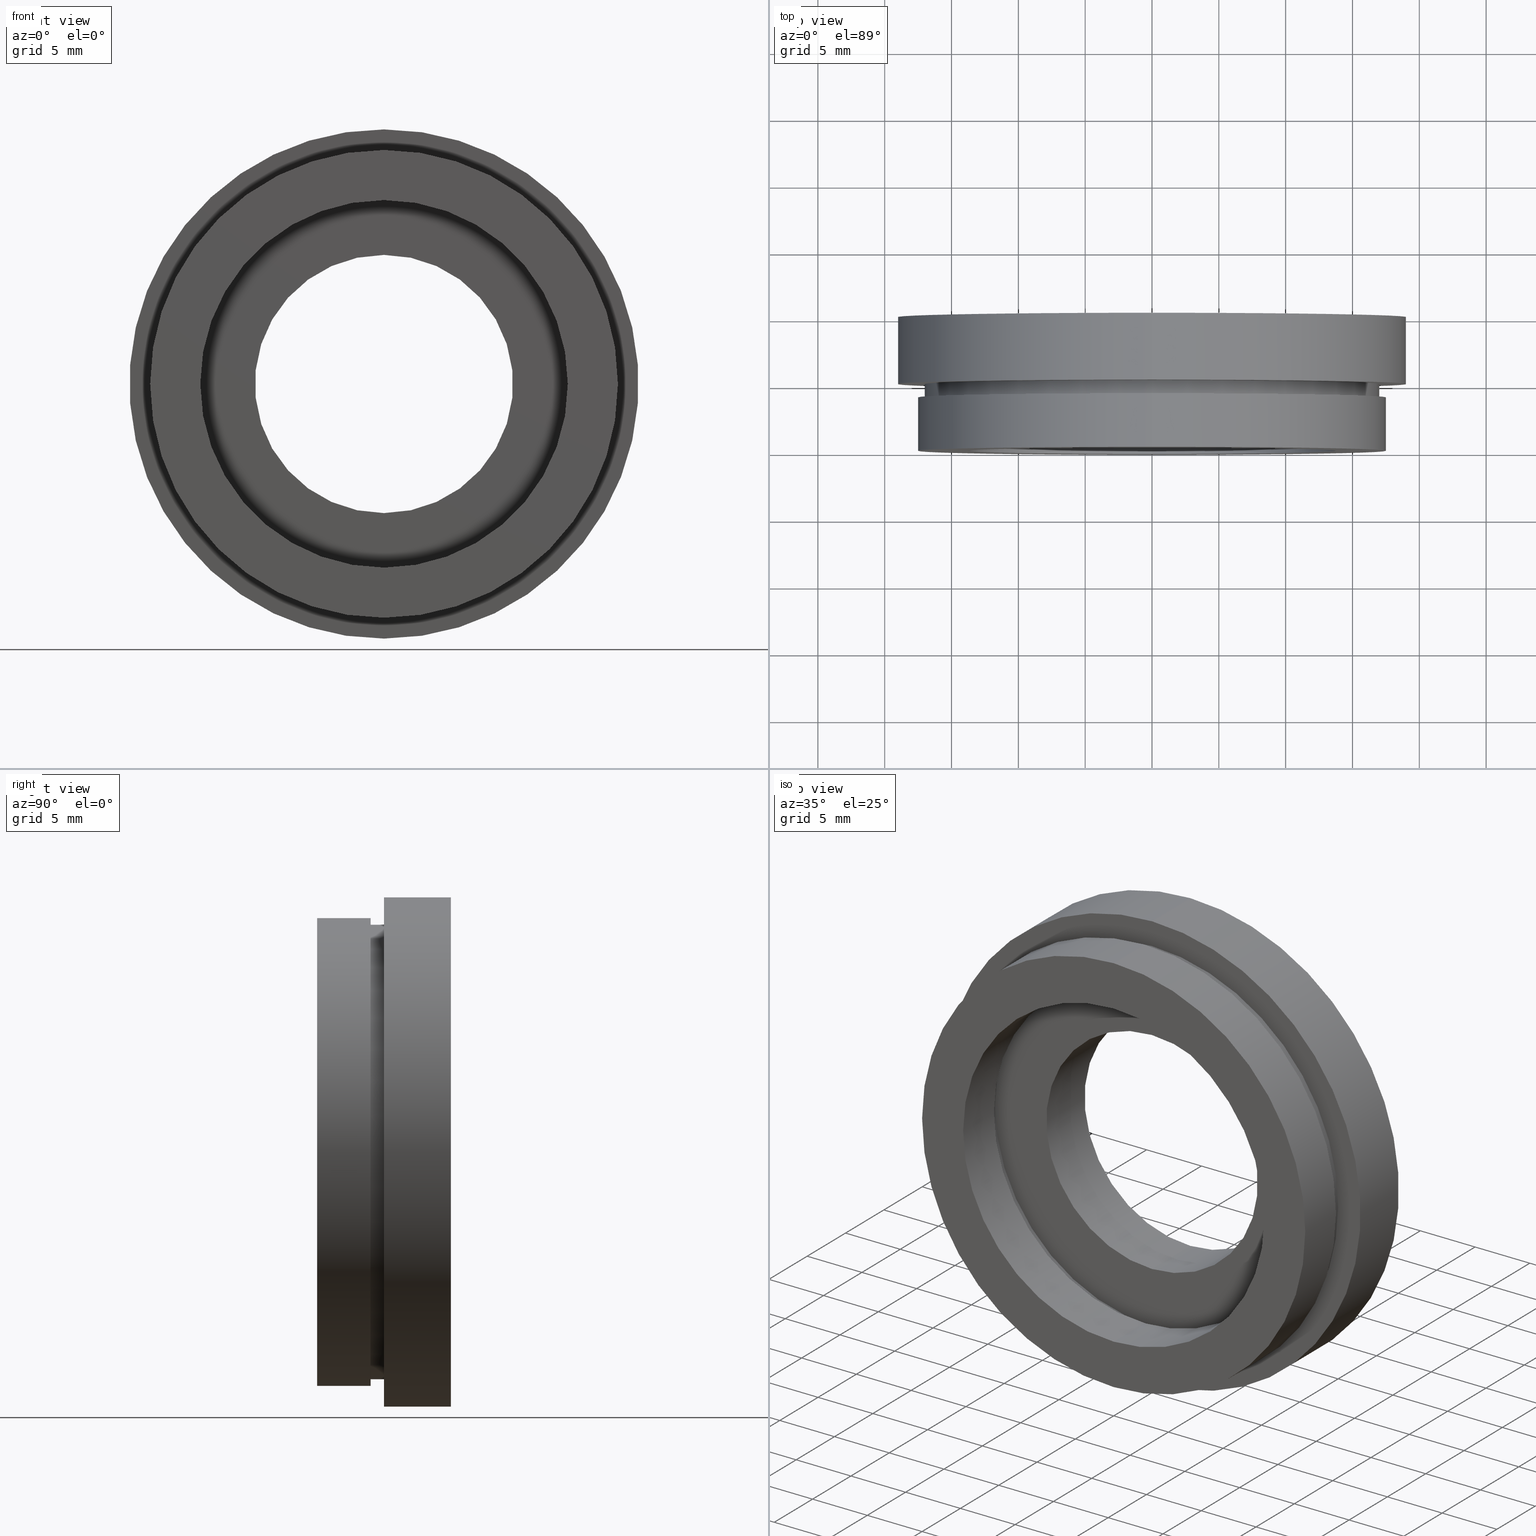
[diagram: canonical four-view strip — front | top / right | iso, engineering-drawing reading convention]
A machine part, canonical four-view strip (front | top / right | iso — engineering-drawing reading convention). The complete STEP part file that produces these views, byte-faithful:
ISO-10303-21;
HEADER;
FILE_DESCRIPTION (( 'STEP AP214' ),
    '1' );
FILE_NAME ('504126.STEP',
    '2019-10-10T07:33:19',
    ( 'user' ),
    ( '΢���й�' ),
    'SwSTEP 2.0',
    'SolidWorks 2016',
    '' );
FILE_SCHEMA (( 'AUTOMOTIVE_DESIGN' ));
ENDSEC;

DATA;
#1 = PRESENTATION_STYLE_ASSIGNMENT (( #591 ) ) ;
#2 = EDGE_CURVE ( 'NONE', #420, #201, #245, .T. ) ;
#3 = SURFACE_SIDE_STYLE ('',( #462 ) ) ;
#4 = UNCERTAINTY_MEASURE_WITH_UNIT (LENGTH_MEASURE( 1.000000000000000100E-005 ), #336, 'distance_accuracy_value', 'NONE');
#5 = DIRECTION ( 'NONE',  ( -0.0000000000000000000, 1.000000000000000000, -0.0000000000000000000 ) ) ;
#6 = CIRCLE ( 'NONE', #101, 14.35000000000000100 ) ;
#7 = EDGE_LOOP ( 'NONE', ( #266, #349, #111, #581 ) ) ;
#8 = AXIS2_PLACEMENT_3D ( 'NONE', #374, #583, #230 ) ;
#9 = ORIENTED_EDGE ( 'NONE', *, *, #530, .F. ) ;
#10 = AXIS2_PLACEMENT_3D ( 'NONE', #317, #52, #461 ) ;
#11 = DIRECTION ( 'NONE',  ( 0.0000000000000000000, 0.0000000000000000000, 1.000000000000000000 ) ) ;
#12 = DIRECTION ( 'NONE',  ( -0.0000000000000000000, 1.000000000000000000, -0.0000000000000000000 ) ) ;
#13 = VERTEX_POINT ( 'NONE', #37 ) ;
#14 = LINE ( 'NONE', #514, #220 ) ;
#15 = CYLINDRICAL_SURFACE ( 'NONE', #66, 13.75000000000000200 ) ;
#16 = ADVANCED_FACE ( 'NONE', ( #28 ), #397, .T. ) ;
#17 = CARTESIAN_POINT ( 'NONE',  ( 1.183008807976343300E-015, 9.999999999999998200, -9.660000000000000100 ) ) ;
#18 = ORIENTED_EDGE ( 'NONE', *, *, #372, .F. ) ;
#19 = APPLICATION_PROTOCOL_DEFINITION ( 'draft international standard', 'automotive_design', 1998, #106 ) ;
#20 = CARTESIAN_POINT ( 'NONE',  ( 0.0000000000000000000, 13.74468085106383300, 0.0000000000000000000 ) ) ;
#21 = EDGE_CURVE ( 'NONE', #217, #201, #481, .T. ) ;
#22 = CIRCLE ( 'NONE', #387, 9.660000000000000100 ) ;
#23 = UNCERTAINTY_MEASURE_WITH_UNIT (LENGTH_MEASURE( 1.000000000000000100E-005 ), #413, 'distance_accuracy_value', 'NONE');
#24 = EDGE_LOOP ( 'NONE', ( #331, #442, #428, #133 ) ) ;
#25 = AXIS2_PLACEMENT_3D ( 'NONE', #285, #389, #480 ) ;
#26 = CARTESIAN_POINT ( 'NONE',  ( 0.0000000000000000000, 4.000000000000000000, 0.0000000000000000000 ) ) ;
#27 = STYLED_ITEM ( 'NONE', ( #304 ), #308 ) ;
#28 = FACE_OUTER_BOUND ( 'NONE', #241, .T. ) ;
#29 = EDGE_CURVE ( 'NONE', #175, #437, #335, .T. ) ;
#30 = FILL_AREA_STYLE_COLOUR ( '', #153 ) ;
#31 = UNCERTAINTY_MEASURE_WITH_UNIT (LENGTH_MEASURE( 1.000000000000000100E-005 ), #409, 'distance_accuracy_value', 'NONE');
#32 = EDGE_LOOP ( 'NONE', ( #114, #267 ) ) ;
#33 = DIRECTION ( 'NONE',  ( -0.0000000000000000000, 1.000000000000000000, -0.0000000000000000000 ) ) ;
#34 =( LENGTH_UNIT ( ) NAMED_UNIT ( * ) SI_UNIT ( .MILLI., .METRE. ) );
#35 = EDGE_CURVE ( 'NONE', #97, #594, #226, .T. ) ;
#36 = CARTESIAN_POINT ( 'NONE',  ( 0.0000000000000000000, 0.0000000000000000000, 0.0000000000000000000 ) ) ;
#37 = CARTESIAN_POINT ( 'NONE',  ( 0.0000000000000000000, 4.000000000000000000, 14.35000000000000100 ) ) ;
#38 =( GEOMETRIC_REPRESENTATION_CONTEXT ( 3 ) GLOBAL_UNCERTAINTY_ASSIGNED_CONTEXT ( ( #23 ) ) GLOBAL_UNIT_ASSIGNED_CONTEXT ( ( #413, #300, #558 ) ) REPRESENTATION_CONTEXT ( 'NONE', 'WORKASPACE' ) );
#39 = ADVANCED_FACE ( 'NONE', ( #170 ), #121, .T. ) ;
#40 = ORIENTED_EDGE ( 'NONE', *, *, #47, .F. ) ;
#41 = SHAPE_DEFINITION_REPRESENTATION ( #307, #151 ) ;
#42 = PLANE ( 'NONE',  #25 ) ;
#43 = CARTESIAN_POINT ( 'NONE',  ( 0.0000000000000000000, 5.000000000000000900, 0.0000000000000000000 ) ) ;
#44 = DIRECTION ( 'NONE',  ( -0.0000000000000000000, 1.000000000000000000, -0.0000000000000000000 ) ) ;
#45 = ORIENTED_EDGE ( 'NONE', *, *, #162, .F. ) ;
#46 = MECHANICAL_DESIGN_GEOMETRIC_PRESENTATION_REPRESENTATION (  '', ( #77 ), #143 ) ;
#47 = EDGE_CURVE ( 'NONE', #221, #13, #6, .T. ) ;
#48 = PRODUCT_CONTEXT ( 'NONE', #388, 'mechanical' ) ;
#49 = PRESENTATION_STYLE_ASSIGNMENT (( #129 ) ) ;
#50 = CARTESIAN_POINT ( 'NONE',  ( 1.183008807976343300E-015, 13.74468085106383300, -9.660000000000000100 ) ) ;
#51 = ORIENTED_EDGE ( 'NONE', *, *, #562, .F. ) ;
#52 = DIRECTION ( 'NONE',  ( -0.0000000000000000000, 1.000000000000000000, -0.0000000000000000000 ) ) ;
#53 = SURFACE_SIDE_STYLE ('',( #446 ) ) ;
#54 = CIRCLE ( 'NONE', #519, 9.660000000000000100 ) ;
#55 = VECTOR ( 'NONE', #86, 1000.000000000000000 ) ;
#56 = FACE_OUTER_BOUND ( 'NONE', #466, .T. ) ;
#57 = AXIS2_PLACEMENT_3D ( 'NONE', #212, #292, #474 ) ;
#58 = EDGE_CURVE ( 'NONE', #437, #175, #611, .T. ) ;
#59 = ORIENTED_EDGE ( 'NONE', *, *, #421, .T. ) ;
#60 = CARTESIAN_POINT ( 'NONE',  ( 0.0000000000000000000, 13.74468085106383300, 13.75000000000000200 ) ) ;
#61 = AXIS2_PLACEMENT_3D ( 'NONE', #590, #274, #193 ) ;
#62 = FACE_OUTER_BOUND ( 'NONE', #451, .T. ) ;
#63 = FACE_OUTER_BOUND ( 'NONE', #458, .T. ) ;
#64 = CARTESIAN_POINT ( 'NONE',  ( 1.183008807976343300E-015, 5.000000000000000900, -9.660000000000000100 ) ) ;
#65 = ORIENTED_EDGE ( 'NONE', *, *, #72, .T. ) ;
#66 = AXIS2_PLACEMENT_3D ( 'NONE', #570, #483, #272 ) ;
#67 = CYLINDRICAL_SURFACE ( 'NONE', #447, 17.00000000000000000 ) ;
#68 = AXIS2_PLACEMENT_3D ( 'NONE', #93, #262, #400 ) ;
#69 = ORIENTED_EDGE ( 'NONE', *, *, #443, .T. ) ;
#70 = CARTESIAN_POINT ( 'NONE',  ( 0.0000000000000000000, 13.74468085106383300, 19.05000000000000400 ) ) ;
#71 = PRESENTATION_LAYER_ASSIGNMENT (  '', '', ( #607 ) ) ;
#72 = EDGE_CURVE ( 'NONE', #97, #117, #603, .T. ) ;
#73 = ORIENTED_EDGE ( 'NONE', *, *, #35, .F. ) ;
#74 = AXIS2_PLACEMENT_3D ( 'NONE', #185, #328, #91 ) ;
#75 =( LENGTH_UNIT ( ) NAMED_UNIT ( * ) SI_UNIT ( .MILLI., .METRE. ) );
#76 =( NAMED_UNIT ( * ) SI_UNIT ( $, .STERADIAN. ) SOLID_ANGLE_UNIT ( ) );
#77 = STYLED_ITEM ( 'NONE', ( #284 ), #149 ) ;
#78 = CARTESIAN_POINT ( 'NONE',  ( 1.683889348827611000E-015, 13.74468085106383300, -13.75000000000000200 ) ) ;
#79 = EDGE_CURVE ( 'NONE', #363, #215, #108, .T. ) ;
#80 = ORIENTED_EDGE ( 'NONE', *, *, #294, .T. ) ;
#81 = ORIENTED_EDGE ( 'NONE', *, *, #206, .T. ) ;
#82 = ORIENTED_EDGE ( 'NONE', *, *, #47, .T. ) ;
#83 =( NAMED_UNIT ( * ) PLANE_ANGLE_UNIT ( ) SI_UNIT ( $, .RADIAN. ) );
#84 = DIRECTION ( 'NONE',  ( -0.0000000000000000000, 1.000000000000000000, -0.0000000000000000000 ) ) ;
#85 = DIRECTION ( 'NONE',  ( 1.000000000000000000, 0.0000000000000000000, 0.0000000000000000000 ) ) ;
#86 = DIRECTION ( 'NONE',  ( -0.0000000000000000000, 1.000000000000000000, -0.0000000000000000000 ) ) ;
#87 =( LENGTH_UNIT ( ) NAMED_UNIT ( * ) SI_UNIT ( .MILLI., .METRE. ) );
#88 = VERTEX_POINT ( 'NONE', #235 ) ;
#89 = ADVANCED_FACE ( 'NONE', ( #585 ), #432, .T. ) ;
#90 = ORIENTED_EDGE ( 'NONE', *, *, #358, .T. ) ;
#91 = DIRECTION ( 'NONE',  ( 0.0000000000000000000, 0.0000000000000000000, 1.000000000000000000 ) ) ;
#92 = EDGE_CURVE ( 'NONE', #88, #217, #517, .T. ) ;
#93 = CARTESIAN_POINT ( 'NONE',  ( 0.0000000000000000000, 4.000000000000000000, 0.0000000000000000000 ) ) ;
#94 = CARTESIAN_POINT ( 'NONE',  ( 0.0000000000000000000, 5.000000000000000900, 0.0000000000000000000 ) ) ;
#95 = CARTESIAN_POINT ( 'NONE',  ( 2.143131898507868200E-015, 4.000000000000000000, -17.50000000000000000 ) ) ;
#96 = DIRECTION ( 'NONE',  ( 0.0000000000000000000, 0.0000000000000000000, 1.000000000000000000 ) ) ;
#97 = VERTEX_POINT ( 'NONE', #136 ) ;
#98 = VERTEX_POINT ( 'NONE', #430 ) ;
#99 = FILL_AREA_STYLE ('',( #623 ) ) ;
#100 = AXIS2_PLACEMENT_3D ( 'NONE', #565, #340, #277 ) ;
#101 = AXIS2_PLACEMENT_3D ( 'NONE', #26, #547, #544 ) ;
#102 = CARTESIAN_POINT ( 'NONE',  ( 0.0000000000000000000, 13.74468085106383300, 0.0000000000000000000 ) ) ;
#103 = APPLICATION_PROTOCOL_DEFINITION ( 'draft international standard', 'automotive_design', 1998, #388 ) ;
#104 = EDGE_CURVE ( 'NONE', #215, #574, #571, .T. ) ;
#105 = SURFACE_SIDE_STYLE ('',( #486 ) ) ;
#106 = APPLICATION_CONTEXT ( 'automotive_design' ) ;
#107 = ORIENTED_EDGE ( 'NONE', *, *, #72, .F. ) ;
#108 = CIRCLE ( 'NONE', #407, 9.660000000000000100 ) ;
#109 = AXIS2_PLACEMENT_3D ( 'NONE', #20, #392, #191 ) ;
#110 = EDGE_CURVE ( 'NONE', #117, #467, #270, .T. ) ;
#111 = ORIENTED_EDGE ( 'NONE', *, *, #135, .T. ) ;
#112 = ORIENTED_EDGE ( 'NONE', *, *, #597, .T. ) ;
#113 = SURFACE_SIDE_STYLE ('',( #580 ) ) ;
#114 = ORIENTED_EDGE ( 'NONE', *, *, #453, .F. ) ;
#115 = DIRECTION ( 'NONE',  ( -0.0000000000000000000, 1.000000000000000000, -0.0000000000000000000 ) ) ;
#116 = CYLINDRICAL_SURFACE ( 'NONE', #478, 17.50000000000000000 ) ;
#117 = VERTEX_POINT ( 'NONE', #138 ) ;
#118 = CARTESIAN_POINT ( 'NONE',  ( 0.0000000000000000000, 13.74468085106383300, 0.0000000000000000000 ) ) ;
#119 = EDGE_CURVE ( 'NONE', #175, #365, #510, .T. ) ;
#120 = FACE_OUTER_BOUND ( 'NONE', #24, .T. ) ;
#121 = CYLINDRICAL_SURFACE ( 'NONE', #348, 19.05000000000000400 ) ;
#122 = CIRCLE ( 'NONE', #269, 13.75000000000000200 ) ;
#123 = ORIENTED_EDGE ( 'NONE', *, *, #622, .T. ) ;
#124 = FACE_OUTER_BOUND ( 'NONE', #326, .T. ) ;
#125 = DIRECTION ( 'NONE',  ( 0.0000000000000000000, -0.0000000000000000000, -1.000000000000000000 ) ) ;
#126 = MECHANICAL_DESIGN_GEOMETRIC_PRESENTATION_REPRESENTATION (  '', ( #27 ), #161 ) ;
#127 = AXIS2_PLACEMENT_3D ( 'NONE', #43, #297, #568 ) ;
#128 = DIRECTION ( 'NONE',  ( -0.0000000000000000000, 1.000000000000000000, -0.0000000000000000000 ) ) ;
#129 = SURFACE_STYLE_USAGE ( .BOTH. , #190 ) ;
#130 = ORIENTED_EDGE ( 'NONE', *, *, #119, .T. ) ;
#131 =( NAMED_UNIT ( * ) SI_UNIT ( $, .STERADIAN. ) SOLID_ANGLE_UNIT ( ) );
#132 = DIRECTION ( 'NONE',  ( -0.0000000000000000000, 1.000000000000000000, -0.0000000000000000000 ) ) ;
#133 = ORIENTED_EDGE ( 'NONE', *, *, #381, .F. ) ;
#134 = ORIENTED_EDGE ( 'NONE', *, *, #58, .T. ) ;
#135 = EDGE_CURVE ( 'NONE', #288, #574, #54, .T. ) ;
#136 = CARTESIAN_POINT ( 'NONE',  ( 0.0000000000000000000, 5.000000000000000900, 19.05000000000000400 ) ) ;
#137 =( NAMED_UNIT ( * ) PLANE_ANGLE_UNIT ( ) SI_UNIT ( $, .RADIAN. ) );
#138 = CARTESIAN_POINT ( 'NONE',  ( 2.332952152375708400E-015, 5.000000000000000900, -19.05000000000000400 ) ) ;
#139 = ADVANCED_FACE ( 'NONE', ( #521 ), #604, .F. ) ;
#140 = CIRCLE ( 'NONE', #8, 19.05000000000000400 ) ;
#141 = UNCERTAINTY_MEASURE_WITH_UNIT (LENGTH_MEASURE( 1.000000000000000100E-005 ), #87, 'distance_accuracy_value', 'NONE');
#142 = DIRECTION ( 'NONE',  ( 0.0000000000000000000, 0.0000000000000000000, 1.000000000000000000 ) ) ;
#143 =( GEOMETRIC_REPRESENTATION_CONTEXT ( 3 ) GLOBAL_UNCERTAINTY_ASSIGNED_CONTEXT ( ( #4 ) ) GLOBAL_UNIT_ASSIGNED_CONTEXT ( ( #336, #156, #76 ) ) REPRESENTATION_CONTEXT ( 'NONE', 'WORKASPACE' ) );
#144 = CLOSED_SHELL ( 'NONE', ( #503, #535, #39, #149, #299, #302, #139, #254, #244, #366, #308, #575, #148, #615, #16, #620, #89, #564 ) ) ;
#145 = ORIENTED_EDGE ( 'NONE', *, *, #224, .F. ) ;
#146 = EDGE_CURVE ( 'NONE', #594, #467, #140, .T. ) ;
#147 =( NAMED_UNIT ( * ) SI_UNIT ( $, .STERADIAN. ) SOLID_ANGLE_UNIT ( ) );
#148 = ADVANCED_FACE ( 'NONE', ( #120 ), #370, .T. ) ;
#149 = ADVANCED_FACE ( 'NONE', ( #476 ), #391, .F. ) ;
#150 = CIRCLE ( 'NONE', #378, 19.05000000000000400 ) ;
#151 = ADVANCED_BREP_SHAPE_REPRESENTATION ( '504126', ( #541, #427 ), #38 ) ;
#152 = ORIENTED_EDGE ( 'NONE', *, *, #29, .T. ) ;
#153 = COLOUR_RGB ( '',1.000000000000000000, 1.000000000000000000, 1.000000000000000000 ) ;
#154 =( GEOMETRIC_REPRESENTATION_CONTEXT ( 3 ) GLOBAL_UNCERTAINTY_ASSIGNED_CONTEXT ( ( #439 ) ) GLOBAL_UNIT_ASSIGNED_CONTEXT ( ( #440, #218, #455 ) ) REPRESENTATION_CONTEXT ( 'NONE', 'WORKASPACE' ) );
#155 = COLOUR_RGB ( '',1.000000000000000000, 1.000000000000000000, 1.000000000000000000 ) ;
#156 =( NAMED_UNIT ( * ) PLANE_ANGLE_UNIT ( ) SI_UNIT ( $, .RADIAN. ) );
#157 = ORIENTED_EDGE ( 'NONE', *, *, #2, .F. ) ;
#158 = DIRECTION ( 'NONE',  ( -0.0000000000000000000, 1.000000000000000000, 0.0000000000000000000 ) ) ;
#159 =( NAMED_UNIT ( * ) PLANE_ANGLE_UNIT ( ) SI_UNIT ( $, .RADIAN. ) );
#160 = COLOUR_RGB ( '',1.000000000000000000, 1.000000000000000000, 1.000000000000000000 ) ;
#161 =( GEOMETRIC_REPRESENTATION_CONTEXT ( 3 ) GLOBAL_UNCERTAINTY_ASSIGNED_CONTEXT ( ( #31 ) ) GLOBAL_UNIT_ASSIGNED_CONTEXT ( ( #409, #613, #147 ) ) REPRESENTATION_CONTEXT ( 'NONE', 'WORKASPACE' ) );
#162 = EDGE_CURVE ( 'NONE', #248, #316, #347, .T. ) ;
#163 = FACE_OUTER_BOUND ( 'NONE', #435, .T. ) ;
#164 = DIRECTION ( 'NONE',  ( -0.0000000000000000000, 1.000000000000000000, -0.0000000000000000000 ) ) ;
#165 = ORIENTED_EDGE ( 'NONE', *, *, #465, .T. ) ;
#166 = DIRECTION ( 'NONE',  ( -0.0000000000000000000, 1.000000000000000000, -0.0000000000000000000 ) ) ;
#167 = CARTESIAN_POINT ( 'NONE',  ( 0.0000000000000000000, 4.999999999999999100, 14.35000000000000000 ) ) ;
#168 = EDGE_CURVE ( 'NONE', #201, #420, #426, .T. ) ;
#169 = DIRECTION ( 'NONE',  ( -0.0000000000000000000, 1.000000000000000000, -0.0000000000000000000 ) ) ;
#170 = FACE_OUTER_BOUND ( 'NONE', #540, .T. ) ;
#171 = AXIS2_PLACEMENT_3D ( 'NONE', #94, #608, #403 ) ;
#172 = ORIENTED_EDGE ( 'NONE', *, *, #119, .F. ) ;
#173 = ORIENTED_EDGE ( 'NONE', *, *, #146, .F. ) ;
#174 = DIRECTION ( 'NONE',  ( -0.0000000000000000000, 1.000000000000000000, -0.0000000000000000000 ) ) ;
#175 = VERTEX_POINT ( 'NONE', #394 ) ;
#176 = AXIS2_PLACEMENT_3D ( 'NONE', #405, #550, #256 ) ;
#177 = CARTESIAN_POINT ( 'NONE',  ( 14.35000000000000000, 4.999999999999999100, 0.0000000000000000000 ) ) ;
#178 = FACE_BOUND ( 'NONE', #337, .T. ) ;
#179 = PRESENTATION_STYLE_ASSIGNMENT (( #454 ) ) ;
#180 = FACE_OUTER_BOUND ( 'NONE', #600, .T. ) ;
#181 = DIRECTION ( 'NONE',  ( 0.0000000000000000000, 0.0000000000000000000, 1.000000000000000000 ) ) ;
#182 = DIRECTION ( 'NONE',  ( 0.0000000000000000000, 0.0000000000000000000, 1.000000000000000000 ) ) ;
#183 = DIRECTION ( 'NONE',  ( 0.0000000000000000000, 0.0000000000000000000, 1.000000000000000000 ) ) ;
#184 = CARTESIAN_POINT ( 'NONE',  ( 0.0000000000000000000, 5.000000000000000900, 0.0000000000000000000 ) ) ;
#185 = CARTESIAN_POINT ( 'NONE',  ( 0.0000000000000000000, 5.000000000000000900, 0.0000000000000000000 ) ) ;
#186 = UNCERTAINTY_MEASURE_WITH_UNIT (LENGTH_MEASURE( 1.000000000000000100E-005 ), #293, 'distance_accuracy_value', 'NONE');
#187 = ORIENTED_EDGE ( 'NONE', *, *, #203, .F. ) ;
#188 = AXIS2_PLACEMENT_3D ( 'NONE', #287, #537, #493 ) ;
#189 = ORIENTED_EDGE ( 'NONE', *, *, #282, .T. ) ;
#190 = SURFACE_SIDE_STYLE ('',( #342 ) ) ;
#191 = DIRECTION ( 'NONE',  ( 0.0000000000000000000, 0.0000000000000000000, 1.000000000000000000 ) ) ;
#192 = DIRECTION ( 'NONE',  ( 0.0000000000000000000, 0.0000000000000000000, 1.000000000000000000 ) ) ;
#193 = DIRECTION ( 'NONE',  ( 0.0000000000000000000, 0.0000000000000000000, 1.000000000000000000 ) ) ;
#194 = CIRCLE ( 'NONE', #468, 17.00000000000000000 ) ;
#195 = DIRECTION ( 'NONE',  ( -0.0000000000000000000, 1.000000000000000000, -0.0000000000000000000 ) ) ;
#196 = SURFACE_STYLE_USAGE ( .BOTH. , #3 ) ;
#197 = ORIENTED_EDGE ( 'NONE', *, *, #168, .F. ) ;
#198 = LINE ( 'NONE', #361, #385 ) ;
#199 = CARTESIAN_POINT ( 'NONE',  ( 0.0000000000000000000, 5.000000000000000900, 17.00000000000000000 ) ) ;
#200 = ORIENTED_EDGE ( 'NONE', *, *, #294, .F. ) ;
#201 = VERTEX_POINT ( 'NONE', #552 ) ;
#202 = ORIENTED_EDGE ( 'NONE', *, *, #358, .F. ) ;
#203 = EDGE_CURVE ( 'NONE', #13, #221, #484, .T. ) ;
#204 = MECHANICAL_DESIGN_GEOMETRIC_PRESENTATION_REPRESENTATION (  '', ( #502 ), #401 ) ;
#205 = LINE ( 'NONE', #78, #448 ) ;
#206 = EDGE_CURVE ( 'NONE', #88, #420, #14, .T. ) ;
#207 = CYLINDRICAL_SURFACE ( 'NONE', #406, 14.35000000000000100 ) ;
#208 = EDGE_LOOP ( 'NONE', ( #298, #452, #616, #157 ) ) ;
#209 = ORIENTED_EDGE ( 'NONE', *, *, #29, .F. ) ;
#210 = AXIS2_PLACEMENT_3D ( 'NONE', #382, #554, #362 ) ;
#211 = CARTESIAN_POINT ( 'NONE',  ( 0.0000000000000000000, 0.0000000000000000000, 0.0000000000000000000 ) ) ;
#212 = CARTESIAN_POINT ( 'NONE',  ( 0.0000000000000000000, 4.000000000000000000, 0.0000000000000000000 ) ) ;
#213 = AXIS2_PLACEMENT_3D ( 'NONE', #445, #507, #399 ) ;
#214 = COLOUR_RGB ( '',1.000000000000000000, 1.000000000000000000, 1.000000000000000000 ) ;
#215 = VERTEX_POINT ( 'NONE', #592 ) ;
#216 = DIRECTION ( 'NONE',  ( 0.0000000000000000000, -1.000000000000000000, 0.0000000000000000000 ) ) ;
#217 = VERTEX_POINT ( 'NONE', #509 ) ;
#218 =( NAMED_UNIT ( * ) PLANE_ANGLE_UNIT ( ) SI_UNIT ( $, .RADIAN. ) );
#219 = DIRECTION ( 'NONE',  ( -0.0000000000000000000, 1.000000000000000000, -0.0000000000000000000 ) ) ;
#220 = VECTOR ( 'NONE', #598, 1000.000000000000000 ) ;
#221 = VERTEX_POINT ( 'NONE', #423 ) ;
#222 = CARTESIAN_POINT ( 'NONE',  ( 0.0000000000000000000, 13.74468085106383300, 14.35000000000000100 ) ) ;
#223 = DIRECTION ( 'NONE',  ( -0.0000000000000000000, 1.000000000000000000, -0.0000000000000000000 ) ) ;
#224 = EDGE_CURVE ( 'NONE', #253, #283, #353, .T. ) ;
#225 = CARTESIAN_POINT ( 'NONE',  ( 1.757368156776451600E-015, 4.999999999999999100, -14.35000000000000000 ) ) ;
#226 = LINE ( 'NONE', #70, #55 ) ;
#227 = FACE_OUTER_BOUND ( 'NONE', #332, .T. ) ;
#228 = FILL_AREA_STYLE_COLOUR ( '', #398 ) ;
#229 = LINE ( 'NONE', #60, #321 ) ;
#230 = DIRECTION ( 'NONE',  ( 0.0000000000000000000, 0.0000000000000000000, 1.000000000000000000 ) ) ;
#231 = ORIENTED_EDGE ( 'NONE', *, *, #542, .T. ) ;
#232 = CARTESIAN_POINT ( 'NONE',  ( 0.0000000000000000000, 4.000000000000000000, 0.0000000000000000000 ) ) ;
#233 = AXIS2_PLACEMENT_3D ( 'NONE', #586, #330, #96 ) ;
#234 = PLANE ( 'NONE',  #243 ) ;
#235 = CARTESIAN_POINT ( 'NONE',  ( 2.143131898507868200E-015, 0.0000000000000000000, -17.50000000000000000 ) ) ;
#236 = CIRCLE ( 'NONE', #614, 13.75000000000000000 ) ;
#237 = FACE_OUTER_BOUND ( 'NONE', #457, .T. ) ;
#238 = FILL_AREA_STYLE_COLOUR ( '', #431 ) ;
#239 = CIRCLE ( 'NONE', #309, 14.35000000000000000 ) ;
#240 = DIRECTION ( 'NONE',  ( 0.0000000000000000000, 0.0000000000000000000, 1.000000000000000000 ) ) ;
#241 = EDGE_LOOP ( 'NONE', ( #578, #134, #130, #313 ) ) ;
#242 = CARTESIAN_POINT ( 'NONE',  ( 0.0000000000000000000, 13.74468085106383300, 17.00000000000000000 ) ) ;
#243 = AXIS2_PLACEMENT_3D ( 'NONE', #579, #216, #441 ) ;
#244 = ADVANCED_FACE ( 'NONE', ( #237 ), #207, .F. ) ;
#245 = CIRCLE ( 'NONE', #188, 17.50000000000000000 ) ;
#246 = FACE_BOUND ( 'NONE', #32, .T. ) ;
#247 = DIRECTION ( 'NONE',  ( 0.0000000000000000000, 0.0000000000000000000, 1.000000000000000000 ) ) ;
#248 = VERTEX_POINT ( 'NONE', #225 ) ;
#249 = AXIS2_PLACEMENT_3D ( 'NONE', #271, #115, #371 ) ;
#250 = PLANE ( 'NONE',  #61 ) ;
#251 = ORIENTED_EDGE ( 'NONE', *, *, #479, .F. ) ;
#252 = CARTESIAN_POINT ( 'NONE',  ( 0.0000000000000000000, 4.000000000000000000, 0.0000000000000000000 ) ) ;
#253 = VERTEX_POINT ( 'NONE', #596 ) ;
#254 = ADVANCED_FACE ( 'NONE', ( #178, #124 ), #546, .F. ) ;
#255 = CARTESIAN_POINT ( 'NONE',  ( 0.0000000000000000000, 4.999999999999999100, 0.0000000000000000000 ) ) ;
#256 = DIRECTION ( 'NONE',  ( 0.0000000000000000000, 0.0000000000000000000, 1.000000000000000000 ) ) ;
#257 = CARTESIAN_POINT ( 'NONE',  ( 0.0000000000000000000, 5.000000000000000900, 0.0000000000000000000 ) ) ;
#258 = LINE ( 'NONE', #50, #556 ) ;
#259 = ORIENTED_EDGE ( 'NONE', *, *, #146, .T. ) ;
#260 = ORIENTED_EDGE ( 'NONE', *, *, #530, .T. ) ;
#261 = CARTESIAN_POINT ( 'NONE',  ( 17.50000000000000000, -4.439344646909156000E-016, 0.0000000000000000000 ) ) ;
#262 = DIRECTION ( 'NONE',  ( -0.0000000000000000000, 1.000000000000000000, -0.0000000000000000000 ) ) ;
#263 = PRESENTATION_STYLE_ASSIGNMENT (( #456 ) ) ;
#264 = SURFACE_SIDE_STYLE ('',( #338 ) ) ;
#265 = VECTOR ( 'NONE', #582, 1000.000000000000000 ) ;
#266 = ORIENTED_EDGE ( 'NONE', *, *, #79, .F. ) ;
#267 = ORIENTED_EDGE ( 'NONE', *, *, #135, .F. ) ;
#268 =( NAMED_UNIT ( * ) PLANE_ANGLE_UNIT ( ) SI_UNIT ( $, .RADIAN. ) );
#269 = AXIS2_PLACEMENT_3D ( 'NONE', #357, #164, #411 ) ;
#270 = LINE ( 'NONE', #606, #469 ) ;
#271 = CARTESIAN_POINT ( 'NONE',  ( 0.0000000000000000000, 4.999999999999999100, 0.0000000000000000000 ) ) ;
#272 = DIRECTION ( 'NONE',  ( 0.0000000000000000000, 0.0000000000000000000, 1.000000000000000000 ) ) ;
#273 = EDGE_CURVE ( 'NONE', #117, #97, #150, .T. ) ;
#274 = DIRECTION ( 'NONE',  ( -0.0000000000000000000, 1.000000000000000000, 0.0000000000000000000 ) ) ;
#275 = DIRECTION ( 'NONE',  ( 0.0000000000000000000, 0.0000000000000000000, 1.000000000000000000 ) ) ;
#276 = ORIENTED_EDGE ( 'NONE', *, *, #597, .F. ) ;
#277 = DIRECTION ( 'NONE',  ( 0.0000000000000000000, 0.0000000000000000000, 1.000000000000000000 ) ) ;
#278 = ORIENTED_EDGE ( 'NONE', *, *, #465, .F. ) ;
#279 = ORIENTED_EDGE ( 'NONE', *, *, #381, .T. ) ;
#280 = AXIS2_PLACEMENT_3D ( 'NONE', #232, #533, #247 ) ;
#281 = CARTESIAN_POINT ( 'NONE',  ( 13.75000000000000200, 3.999999999999999100, 0.0000000000000000000 ) ) ;
#282 = EDGE_CURVE ( 'NONE', #13, #316, #494, .T. ) ;
#283 = VERTEX_POINT ( 'NONE', #334 ) ;
#284 = PRESENTATION_STYLE_ASSIGNMENT (( #577 ) ) ;
#285 = CARTESIAN_POINT ( 'NONE',  ( 17.00000000000000000, 4.000000000000000000, 0.0000000000000000000 ) ) ;
#286 = FACE_BOUND ( 'NONE', #459, .T. ) ;
#287 = CARTESIAN_POINT ( 'NONE',  ( 0.0000000000000000000, 4.000000000000000000, 0.0000000000000000000 ) ) ;
#288 = VERTEX_POINT ( 'NONE', #17 ) ;
#289 = DIRECTION ( 'NONE',  ( 0.0000000000000000000, 0.0000000000000000000, 1.000000000000000000 ) ) ;
#290 = DIRECTION ( 'NONE',  ( -0.0000000000000000000, 1.000000000000000000, -0.0000000000000000000 ) ) ;
#291 = CARTESIAN_POINT ( 'NONE',  ( 0.0000000000000000000, 9.999999999999998200, 0.0000000000000000000 ) ) ;
#292 = DIRECTION ( 'NONE',  ( -0.0000000000000000000, 1.000000000000000000, -0.0000000000000000000 ) ) ;
#293 =( LENGTH_UNIT ( ) NAMED_UNIT ( * ) SI_UNIT ( .MILLI., .METRE. ) );
#294 = EDGE_CURVE ( 'NONE', #316, #248, #239, .T. ) ;
#295 = ORIENTED_EDGE ( 'NONE', *, *, #282, .F. ) ;
#296 = CARTESIAN_POINT ( 'NONE',  ( 0.0000000000000000000, -1.734723475976807100E-015, 13.75000000000000000 ) ) ;
#297 = DIRECTION ( 'NONE',  ( -0.0000000000000000000, 1.000000000000000000, -0.0000000000000000000 ) ) ;
#298 = ORIENTED_EDGE ( 'NONE', *, *, #206, .F. ) ;
#299 = ADVANCED_FACE ( 'NONE', ( #433 ), #534, .F. ) ;
#300 =( NAMED_UNIT ( * ) PLANE_ANGLE_UNIT ( ) SI_UNIT ( $, .RADIAN. ) );
#301 =( LENGTH_UNIT ( ) NAMED_UNIT ( * ) SI_UNIT ( .MILLI., .METRE. ) );
#302 = ADVANCED_FACE ( 'NONE', ( #63 ), #15, .F. ) ;
#303 = VECTOR ( 'NONE', #33, 1000.000000000000000 ) ;
#304 = PRESENTATION_STYLE_ASSIGNMENT (( #414 ) ) ;
#305 = PRODUCT_RELATED_PRODUCT_CATEGORY ( 'part', '', ( #612 ) ) ;
#306 = CARTESIAN_POINT ( 'NONE',  ( 0.0000000000000000000, 5.000000000000000900, 0.0000000000000000000 ) ) ;
#307 = PRODUCT_DEFINITION_SHAPE ( 'NONE', 'NONE',  #490 ) ;
#308 = ADVANCED_FACE ( 'NONE', ( #376 ), #470, .F. ) ;
#309 = AXIS2_PLACEMENT_3D ( 'NONE', #255, #322, #505 ) ;
#310 = ORIENTED_EDGE ( 'NONE', *, *, #224, .T. ) ;
#311 = DIRECTION ( 'NONE',  ( 0.0000000000000000000, 0.0000000000000000000, 1.000000000000000000 ) ) ;
#312 = PLANE ( 'NONE',  #315 ) ;
#313 = ORIENTED_EDGE ( 'NONE', *, *, #622, .F. ) ;
#314 = CIRCLE ( 'NONE', #438, 13.75000000000000000 ) ;
#315 = AXIS2_PLACEMENT_3D ( 'NONE', #261, #158, #240 ) ;
#316 = VERTEX_POINT ( 'NONE', #167 ) ;
#317 = CARTESIAN_POINT ( 'NONE',  ( 0.0000000000000000000, 13.74468085106383300, 0.0000000000000000000 ) ) ;
#318 = FILL_AREA_STYLE ('',( #228 ) ) ;
#319 = MECHANICAL_DESIGN_GEOMETRIC_PRESENTATION_REPRESENTATION (  '', ( #607 ), #154 ) ;
#320 = COLOUR_RGB ( '',1.000000000000000000, 1.000000000000000000, 1.000000000000000000 ) ;
#321 = VECTOR ( 'NONE', #359, 1000.000000000000000 ) ;
#322 = DIRECTION ( 'NONE',  ( -0.0000000000000000000, 1.000000000000000000, -0.0000000000000000000 ) ) ;
#323 =( NAMED_UNIT ( * ) PLANE_ANGLE_UNIT ( ) SI_UNIT ( $, .RADIAN. ) );
#324 = EDGE_LOOP ( 'NONE', ( #209, #396 ) ) ;
#325 = PLANE ( 'NONE',  #495 ) ;
#326 = EDGE_LOOP ( 'NONE', ( #386, #82 ) ) ;
#327 = DIRECTION ( 'NONE',  ( 0.0000000000000000000, 0.0000000000000000000, 1.000000000000000000 ) ) ;
#328 = DIRECTION ( 'NONE',  ( -0.0000000000000000000, 1.000000000000000000, -0.0000000000000000000 ) ) ;
#329 = EDGE_LOOP ( 'NONE', ( #410, #504 ) ) ;
#330 = DIRECTION ( 'NONE',  ( -0.0000000000000000000, 1.000000000000000000, -0.0000000000000000000 ) ) ;
#331 = ORIENTED_EDGE ( 'NONE', *, *, #110, .F. ) ;
#332 = EDGE_LOOP ( 'NONE', ( #259, #279 ) ) ;
#333 = UNCERTAINTY_MEASURE_WITH_UNIT (LENGTH_MEASURE( 1.000000000000000100E-005 ), #34, 'distance_accuracy_value', 'NONE');
#334 = CARTESIAN_POINT ( 'NONE',  ( 0.0000000000000000000, 4.000000000000000000, 13.75000000000000200 ) ) ;
#335 = CIRCLE ( 'NONE', #57, 17.00000000000000000 ) ;
#336 =( LENGTH_UNIT ( ) NAMED_UNIT ( * ) SI_UNIT ( .MILLI., .METRE. ) );
#337 = EDGE_LOOP ( 'NONE', ( #202, #145 ) ) ;
#338 = SURFACE_STYLE_FILL_AREA ( #424 ) ;
#339 = PRODUCT_DEFINITION_FORMATION_WITH_SPECIFIED_SOURCE ( '�κ�', '', #612, .NOT_KNOWN. ) ;
#340 = DIRECTION ( 'NONE',  ( -0.0000000000000000000, 1.000000000000000000, -0.0000000000000000000 ) ) ;
#341 = PRESENTATION_LAYER_ASSIGNMENT (  '', '', ( #472 ) ) ;
#342 = SURFACE_STYLE_FILL_AREA ( #539 ) ;
#343 = MECHANICAL_DESIGN_GEOMETRIC_PRESENTATION_REPRESENTATION (  '', ( #375 ), #354 ) ;
#344 = FACE_OUTER_BOUND ( 'NONE', #329, .T. ) ;
#345 = SURFACE_SIDE_STYLE ('',( #369 ) ) ;
#346 = AXIS2_PLACEMENT_3D ( 'NONE', #252, #169, #488 ) ;
#347 = CIRCLE ( 'NONE', #249, 14.35000000000000000 ) ;
#348 = AXIS2_PLACEMENT_3D ( 'NONE', #561, #412, #142 ) ;
#349 = ORIENTED_EDGE ( 'NONE', *, *, #372, .T. ) ;
#350 = ORIENTED_EDGE ( 'NONE', *, *, #421, .F. ) ;
#351 = ORIENTED_EDGE ( 'NONE', *, *, #453, .T. ) ;
#352 =( NAMED_UNIT ( * ) SI_UNIT ( $, .STERADIAN. ) SOLID_ANGLE_UNIT ( ) );
#353 = CIRCLE ( 'NONE', #346, 13.75000000000000200 ) ;
#354 =( GEOMETRIC_REPRESENTATION_CONTEXT ( 3 ) GLOBAL_UNCERTAINTY_ASSIGNED_CONTEXT ( ( #141 ) ) GLOBAL_UNIT_ASSIGNED_CONTEXT ( ( #87, #83, #475 ) ) REPRESENTATION_CONTEXT ( 'NONE', 'WORKASPACE' ) );
#355 = ORIENTED_EDGE ( 'NONE', *, *, #542, .F. ) ;
#356 = FILL_AREA_STYLE_COLOUR ( '', #214 ) ;
#357 = CARTESIAN_POINT ( 'NONE',  ( 0.0000000000000000000, 4.000000000000000000, 0.0000000000000000000 ) ) ;
#358 = EDGE_CURVE ( 'NONE', #283, #253, #122, .T. ) ;
#359 = DIRECTION ( 'NONE',  ( -0.0000000000000000000, 1.000000000000000000, -0.0000000000000000000 ) ) ;
#360 = CIRCLE ( 'NONE', #566, 17.50000000000000000 ) ;
#361 = CARTESIAN_POINT ( 'NONE',  ( 1.757368156776452000E-015, 13.74468085106383300, -14.35000000000000100 ) ) ;
#362 = DIRECTION ( 'NONE',  ( 0.0000000000000000000, 0.0000000000000000000, 1.000000000000000000 ) ) ;
#363 = VERTEX_POINT ( 'NONE', #64 ) ;
#364 = EDGE_LOOP ( 'NONE', ( #260, #123 ) ) ;
#365 = VERTEX_POINT ( 'NONE', #199 ) ;
#366 = ADVANCED_FACE ( 'NONE', ( #180, #497 ), #325, .F. ) ;
#367 = DIRECTION ( 'NONE',  ( -0.0000000000000000000, 1.000000000000000000, -0.0000000000000000000 ) ) ;
#368 = STYLED_ITEM ( 'NONE', ( #419 ), #151 ) ;
#369 = SURFACE_STYLE_FILL_AREA ( #318 ) ;
#370 = CYLINDRICAL_SURFACE ( 'NONE', #109, 19.05000000000000400 ) ;
#371 = DIRECTION ( 'NONE',  ( 0.0000000000000000000, 0.0000000000000000000, 1.000000000000000000 ) ) ;
#372 = EDGE_CURVE ( 'NONE', #363, #288, #258, .T. ) ;
#373 = ORIENTED_EDGE ( 'NONE', *, *, #104, .T. ) ;
#374 = CARTESIAN_POINT ( 'NONE',  ( 0.0000000000000000000, 9.999999999999998200, 0.0000000000000000000 ) ) ;
#375 = STYLED_ITEM ( 'NONE', ( #263 ), #541 ) ;
#376 = FACE_OUTER_BOUND ( 'NONE', #588, .T. ) ;
#377 = DIRECTION ( 'NONE',  ( 0.0000000000000000000, -1.000000000000000000, 0.0000000000000000000 ) ) ;
#378 = AXIS2_PLACEMENT_3D ( 'NONE', #306, #404, #418 ) ;
#379 = ORIENTED_EDGE ( 'NONE', *, *, #110, .T. ) ;
#380 = CARTESIAN_POINT ( 'NONE',  ( 2.332952152375708400E-015, 9.999999999999998200, -19.05000000000000400 ) ) ;
#381 = EDGE_CURVE ( 'NONE', #467, #594, #390, .T. ) ;
#382 = CARTESIAN_POINT ( 'NONE',  ( 0.0000000000000000000, 9.999999999999998200, 0.0000000000000000000 ) ) ;
#383 = CARTESIAN_POINT ( 'NONE',  ( 0.0000000000000000000, 13.74468085106383300, 9.660000000000000100 ) ) ;
#384 = DIRECTION ( 'NONE',  ( -0.0000000000000000000, 1.000000000000000000, -0.0000000000000000000 ) ) ;
#385 = VECTOR ( 'NONE', #429, 1000.000000000000000 ) ;
#386 = ORIENTED_EDGE ( 'NONE', *, *, #203, .T. ) ;
#387 = AXIS2_PLACEMENT_3D ( 'NONE', #485, #460, #182 ) ;
#388 = APPLICATION_CONTEXT ( 'automotive_design' ) ;
#389 = DIRECTION ( 'NONE',  ( 0.0000000000000000000, -1.000000000000000000, 0.0000000000000000000 ) ) ;
#390 = CIRCLE ( 'NONE', #210, 19.05000000000000400 ) ;
#391 = CYLINDRICAL_SURFACE ( 'NONE', #176, 9.660000000000000100 ) ;
#392 = DIRECTION ( 'NONE',  ( -0.0000000000000000000, 1.000000000000000000, -0.0000000000000000000 ) ) ;
#393 = EDGE_LOOP ( 'NONE', ( #278, #491 ) ) ;
#394 = CARTESIAN_POINT ( 'NONE',  ( 0.0000000000000000000, 4.000000000000000000, 17.00000000000000000 ) ) ;
#395 = FILL_AREA_STYLE ('',( #356 ) ) ;
#396 = ORIENTED_EDGE ( 'NONE', *, *, #58, .F. ) ;
#397 = CYLINDRICAL_SURFACE ( 'NONE', #10, 17.00000000000000000 ) ;
#398 = COLOUR_RGB ( '',1.000000000000000000, 1.000000000000000000, 1.000000000000000000 ) ;
#399 = DIRECTION ( 'NONE',  ( 0.0000000000000000000, 0.0000000000000000000, 1.000000000000000000 ) ) ;
#400 = DIRECTION ( 'NONE',  ( 0.0000000000000000000, 0.0000000000000000000, 1.000000000000000000 ) ) ;
#401 =( GEOMETRIC_REPRESENTATION_CONTEXT ( 3 ) GLOBAL_UNCERTAINTY_ASSIGNED_CONTEXT ( ( #416 ) ) GLOBAL_UNIT_ASSIGNED_CONTEXT ( ( #75, #323, #131 ) ) REPRESENTATION_CONTEXT ( 'NONE', 'WORKASPACE' ) );
#402 =( NAMED_UNIT ( * ) SI_UNIT ( $, .STERADIAN. ) SOLID_ANGLE_UNIT ( ) );
#403 = DIRECTION ( 'NONE',  ( 0.0000000000000000000, 0.0000000000000000000, 1.000000000000000000 ) ) ;
#404 = DIRECTION ( 'NONE',  ( -0.0000000000000000000, 1.000000000000000000, -0.0000000000000000000 ) ) ;
#405 = CARTESIAN_POINT ( 'NONE',  ( 0.0000000000000000000, 13.74468085106383300, 0.0000000000000000000 ) ) ;
#406 = AXIS2_PLACEMENT_3D ( 'NONE', #118, #195, #275 ) ;
#407 = AXIS2_PLACEMENT_3D ( 'NONE', #257, #12, #496 ) ;
#408 = CARTESIAN_POINT ( 'NONE',  ( 0.0000000000000000000, 0.0000000000000000000, 0.0000000000000000000 ) ) ;
#409 =( LENGTH_UNIT ( ) NAMED_UNIT ( * ) SI_UNIT ( .MILLI., .METRE. ) );
#410 = ORIENTED_EDGE ( 'NONE', *, *, #168, .T. ) ;
#411 = DIRECTION ( 'NONE',  ( 0.0000000000000000000, 0.0000000000000000000, 1.000000000000000000 ) ) ;
#412 = DIRECTION ( 'NONE',  ( -0.0000000000000000000, 1.000000000000000000, -0.0000000000000000000 ) ) ;
#413 =( LENGTH_UNIT ( ) NAMED_UNIT ( * ) SI_UNIT ( .MILLI., .METRE. ) );
#414 = SURFACE_STYLE_USAGE ( .BOTH. , #345 ) ;
#415 = PRESENTATION_LAYER_ASSIGNMENT (  '', '', ( #375 ) ) ;
#416 = UNCERTAINTY_MEASURE_WITH_UNIT (LENGTH_MEASURE( 1.000000000000000100E-005 ), #75, 'distance_accuracy_value', 'NONE');
#417 = VECTOR ( 'NONE', #174, 1000.000000000000000 ) ;
#418 = DIRECTION ( 'NONE',  ( 0.0000000000000000000, 0.0000000000000000000, 1.000000000000000000 ) ) ;
#419 = PRESENTATION_STYLE_ASSIGNMENT (( #196 ) ) ;
#420 = VERTEX_POINT ( 'NONE', #95 ) ;
#421 = EDGE_CURVE ( 'NONE', #500, #253, #205, .T. ) ;
#422 = CARTESIAN_POINT ( 'NONE',  ( 2.081899558550500300E-015, 4.000000000000000000, -17.00000000000000000 ) ) ;
#423 = CARTESIAN_POINT ( 'NONE',  ( 1.757368156776452000E-015, 4.000000000000000000, -14.35000000000000100 ) ) ;
#424 = FILL_AREA_STYLE ('',( #512 ) ) ;
#425 = CARTESIAN_POINT ( 'NONE',  ( 0.0000000000000000000, 13.74468085106383300, 0.0000000000000000000 ) ) ;
#426 = CIRCLE ( 'NONE', #213, 17.50000000000000000 ) ;
#427 = AXIS2_PLACEMENT_3D ( 'NONE', #211, #181, #85 ) ;
#428 = ORIENTED_EDGE ( 'NONE', *, *, #35, .T. ) ;
#429 = DIRECTION ( 'NONE',  ( -0.0000000000000000000, 1.000000000000000000, -0.0000000000000000000 ) ) ;
#430 = CARTESIAN_POINT ( 'NONE',  ( 2.081899558550500300E-015, 5.000000000000000900, -17.00000000000000000 ) ) ;
#431 = COLOUR_RGB ( '',1.000000000000000000, 1.000000000000000000, 1.000000000000000000 ) ;
#432 = CYLINDRICAL_SURFACE ( 'NONE', #492, 17.50000000000000000 ) ;
#433 = FACE_OUTER_BOUND ( 'NONE', #599, .T. ) ;
#434 = CARTESIAN_POINT ( 'NONE',  ( 0.0000000000000000000, -1.734723475976807100E-015, 0.0000000000000000000 ) ) ;
#435 = EDGE_LOOP ( 'NONE', ( #152, #498, #9, #172 ) ) ;
#436 = LINE ( 'NONE', #572, #265 ) ;
#437 = VERTEX_POINT ( 'NONE', #422 ) ;
#438 = AXIS2_PLACEMENT_3D ( 'NONE', #516, #290, #563 ) ;
#439 = UNCERTAINTY_MEASURE_WITH_UNIT (LENGTH_MEASURE( 1.000000000000000100E-005 ), #440, 'distance_accuracy_value', 'NONE');
#440 =( LENGTH_UNIT ( ) NAMED_UNIT ( * ) SI_UNIT ( .MILLI., .METRE. ) );
#441 = DIRECTION ( 'NONE',  ( 0.0000000000000000000, -0.0000000000000000000, -1.000000000000000000 ) ) ;
#442 = ORIENTED_EDGE ( 'NONE', *, *, #273, .T. ) ;
#443 = EDGE_CURVE ( 'NONE', #500, #489, #236, .T. ) ;
#444 = CARTESIAN_POINT ( 'NONE',  ( 0.0000000000000000000, 9.999999999999998200, 19.05000000000000400 ) ) ;
#445 = CARTESIAN_POINT ( 'NONE',  ( 0.0000000000000000000, 4.000000000000000000, 0.0000000000000000000 ) ) ;
#446 = SURFACE_STYLE_FILL_AREA ( #395 ) ;
#447 = AXIS2_PLACEMENT_3D ( 'NONE', #601, #166, #449 ) ;
#448 = VECTOR ( 'NONE', #5, 1000.000000000000000 ) ;
#449 = DIRECTION ( 'NONE',  ( 0.0000000000000000000, 0.0000000000000000000, 1.000000000000000000 ) ) ;
#450 = COLOUR_RGB ( '',1.000000000000000000, 1.000000000000000000, 1.000000000000000000 ) ;
#451 = EDGE_LOOP ( 'NONE', ( #165, #81, #197, #605 ) ) ;
#452 = ORIENTED_EDGE ( 'NONE', *, *, #92, .T. ) ;
#453 = EDGE_CURVE ( 'NONE', #574, #288, #22, .T. ) ;
#454 = SURFACE_STYLE_USAGE ( .BOTH. , #53 ) ;
#455 =( NAMED_UNIT ( * ) SI_UNIT ( $, .STERADIAN. ) SOLID_ANGLE_UNIT ( ) );
#456 = SURFACE_STYLE_USAGE ( .BOTH. , #105 ) ;
#457 = EDGE_LOOP ( 'NONE', ( #51, #187, #189, #80 ) ) ;
#458 = EDGE_LOOP ( 'NONE', ( #617, #59, #310, #251 ) ) ;
#459 = EDGE_LOOP ( 'NONE', ( #231, #69 ) ) ;
#460 = DIRECTION ( 'NONE',  ( -0.0000000000000000000, 1.000000000000000000, -0.0000000000000000000 ) ) ;
#461 = DIRECTION ( 'NONE',  ( 0.0000000000000000000, 0.0000000000000000000, 1.000000000000000000 ) ) ;
#462 = SURFACE_STYLE_FILL_AREA ( #531 ) ;
#463 = FACE_BOUND ( 'NONE', #324, .T. ) ;
#464 = DIRECTION ( 'NONE',  ( -0.0000000000000000000, 1.000000000000000000, -0.0000000000000000000 ) ) ;
#465 = EDGE_CURVE ( 'NONE', #217, #88, #360, .T. ) ;
#466 = EDGE_LOOP ( 'NONE', ( #107, #589 ) ) ;
#467 = VERTEX_POINT ( 'NONE', #380 ) ;
#468 = AXIS2_PLACEMENT_3D ( 'NONE', #184, #219, #311 ) ;
#469 = VECTOR ( 'NONE', #128, 1000.000000000000000 ) ;
#470 = CYLINDRICAL_SURFACE ( 'NONE', #233, 9.660000000000000100 ) ;
#471 = SURFACE_STYLE_USAGE ( .BOTH. , #567 ) ;
#472 = STYLED_ITEM ( 'NONE', ( #1 ), #302 ) ;
#473 = AXIS2_PLACEMENT_3D ( 'NONE', #36, #384, #559 ) ;
#474 = DIRECTION ( 'NONE',  ( 0.0000000000000000000, 0.0000000000000000000, 1.000000000000000000 ) ) ;
#475 =( NAMED_UNIT ( * ) SI_UNIT ( $, .STERADIAN. ) SOLID_ANGLE_UNIT ( ) );
#476 = FACE_OUTER_BOUND ( 'NONE', #7, .T. ) ;
#477 = DIRECTION ( 'NONE',  ( -0.0000000000000000000, 1.000000000000000000, -0.0000000000000000000 ) ) ;
#478 = AXIS2_PLACEMENT_3D ( 'NONE', #425, #487, #11 ) ;
#479 = EDGE_CURVE ( 'NONE', #489, #283, #229, .T. ) ;
#480 = DIRECTION ( 'NONE',  ( 0.0000000000000000000, -0.0000000000000000000, -1.000000000000000000 ) ) ;
#481 = LINE ( 'NONE', #524, #303 ) ;
#482 = CIRCLE ( 'NONE', #171, 9.660000000000000100 ) ;
#483 = DIRECTION ( 'NONE',  ( -0.0000000000000000000, 1.000000000000000000, -0.0000000000000000000 ) ) ;
#484 = CIRCLE ( 'NONE', #280, 14.35000000000000100 ) ;
#485 = CARTESIAN_POINT ( 'NONE',  ( 0.0000000000000000000, 9.999999999999998200, 0.0000000000000000000 ) ) ;
#486 = SURFACE_STYLE_FILL_AREA ( #543 ) ;
#487 = DIRECTION ( 'NONE',  ( -0.0000000000000000000, 1.000000000000000000, -0.0000000000000000000 ) ) ;
#488 = DIRECTION ( 'NONE',  ( 0.0000000000000000000, 0.0000000000000000000, 1.000000000000000000 ) ) ;
#489 = VERTEX_POINT ( 'NONE', #296 ) ;
#490 = PRODUCT_DEFINITION ( 'δ֪', '', #339, #528 ) ;
#491 = ORIENTED_EDGE ( 'NONE', *, *, #92, .F. ) ;
#492 = AXIS2_PLACEMENT_3D ( 'NONE', #102, #367, #183 ) ;
#493 = DIRECTION ( 'NONE',  ( 0.0000000000000000000, 0.0000000000000000000, 1.000000000000000000 ) ) ;
#494 = LINE ( 'NONE', #222, #417 ) ;
#495 = AXIS2_PLACEMENT_3D ( 'NONE', #177, #527, #327 ) ;
#496 = DIRECTION ( 'NONE',  ( 0.0000000000000000000, 0.0000000000000000000, 1.000000000000000000 ) ) ;
#497 = FACE_BOUND ( 'NONE', #525, .T. ) ;
#498 = ORIENTED_EDGE ( 'NONE', *, *, #569, .T. ) ;
#499 = EDGE_LOOP ( 'NONE', ( #350, #355, #526, #90 ) ) ;
#500 = VERTEX_POINT ( 'NONE', #618 ) ;
#501 = AXIS2_PLACEMENT_3D ( 'NONE', #281, #377, #125 ) ;
#502 = STYLED_ITEM ( 'NONE', ( #49 ), #89 ) ;
#503 = ADVANCED_FACE ( 'NONE', ( #62 ), #116, .T. ) ;
#504 = ORIENTED_EDGE ( 'NONE', *, *, #2, .T. ) ;
#505 = DIRECTION ( 'NONE',  ( 0.0000000000000000000, 0.0000000000000000000, 1.000000000000000000 ) ) ;
#506 = FILL_AREA_STYLE_COLOUR ( '', #450 ) ;
#507 = DIRECTION ( 'NONE',  ( -0.0000000000000000000, 1.000000000000000000, -0.0000000000000000000 ) ) ;
#508 =( GEOMETRIC_REPRESENTATION_CONTEXT ( 3 ) GLOBAL_UNCERTAINTY_ASSIGNED_CONTEXT ( ( #333 ) ) GLOBAL_UNIT_ASSIGNED_CONTEXT ( ( #34, #137, #352 ) ) REPRESENTATION_CONTEXT ( 'NONE', 'WORKASPACE' ) );
#509 = CARTESIAN_POINT ( 'NONE',  ( 0.0000000000000000000, 0.0000000000000000000, 17.50000000000000000 ) ) ;
#510 = LINE ( 'NONE', #242, #511 ) ;
#511 = VECTOR ( 'NONE', #132, 1000.000000000000000 ) ;
#512 = FILL_AREA_STYLE_COLOUR ( '', #155 ) ;
#513 = CIRCLE ( 'NONE', #74, 17.00000000000000000 ) ;
#514 = CARTESIAN_POINT ( 'NONE',  ( 2.143131898507868200E-015, 13.74468085106383300, -17.50000000000000000 ) ) ;
#515 =( NAMED_UNIT ( * ) SI_UNIT ( $, .STERADIAN. ) SOLID_ANGLE_UNIT ( ) );
#516 = CARTESIAN_POINT ( 'NONE',  ( 0.0000000000000000000, -1.734723475976807100E-015, 0.0000000000000000000 ) ) ;
#517 = CIRCLE ( 'NONE', #473, 17.50000000000000000 ) ;
#518 =( GEOMETRIC_REPRESENTATION_CONTEXT ( 3 ) GLOBAL_UNCERTAINTY_ASSIGNED_CONTEXT ( ( #186 ) ) GLOBAL_UNIT_ASSIGNED_CONTEXT ( ( #293, #159, #402 ) ) REPRESENTATION_CONTEXT ( 'NONE', 'WORKASPACE' ) );
#519 = AXIS2_PLACEMENT_3D ( 'NONE', #291, #477, #289 ) ;
#520 = UNCERTAINTY_MEASURE_WITH_UNIT (LENGTH_MEASURE( 1.000000000000000100E-005 ), #301, 'distance_accuracy_value', 'NONE');
#521 = FACE_OUTER_BOUND ( 'NONE', #499, .T. ) ;
#522 = VECTOR ( 'NONE', #84, 1000.000000000000000 ) ;
#523 = DIRECTION ( 'NONE',  ( 0.0000000000000000000, 0.0000000000000000000, 1.000000000000000000 ) ) ;
#524 = CARTESIAN_POINT ( 'NONE',  ( 0.0000000000000000000, 13.74468085106383300, 17.50000000000000000 ) ) ;
#525 = EDGE_LOOP ( 'NONE', ( #112, #593 ) ) ;
#526 = ORIENTED_EDGE ( 'NONE', *, *, #479, .T. ) ;
#527 = DIRECTION ( 'NONE',  ( -0.0000000000000000000, 1.000000000000000000, 0.0000000000000000000 ) ) ;
#528 = PRODUCT_DEFINITION_CONTEXT ( 'detailed design', #106, 'design' ) ;
#529 = AXIS2_PLACEMENT_3D ( 'NONE', #551, #223, #523 ) ;
#530 = EDGE_CURVE ( 'NONE', #365, #98, #194, .T. ) ;
#531 = FILL_AREA_STYLE ('',( #30 ) ) ;
#532 = SURFACE_STYLE_FILL_AREA ( #560 ) ;
#533 = DIRECTION ( 'NONE',  ( -0.0000000000000000000, 1.000000000000000000, -0.0000000000000000000 ) ) ;
#534 = CYLINDRICAL_SURFACE ( 'NONE', #529, 14.35000000000000100 ) ;
#535 = ADVANCED_FACE ( 'NONE', ( #163 ), #67, .T. ) ;
#536 = PRESENTATION_LAYER_ASSIGNMENT (  '', '', ( #584 ) ) ;
#537 = DIRECTION ( 'NONE',  ( -0.0000000000000000000, 1.000000000000000000, -0.0000000000000000000 ) ) ;
#538 = FACE_BOUND ( 'NONE', #364, .T. ) ;
#539 = FILL_AREA_STYLE ('',( #609 ) ) ;
#540 = EDGE_LOOP ( 'NONE', ( #65, #379, #173, #73 ) ) ;
#541 = MANIFOLD_SOLID_BREP ( '��ת1', #144 ) ;
#542 = EDGE_CURVE ( 'NONE', #489, #500, #314, .T. ) ;
#543 = FILL_AREA_STYLE ('',( #506 ) ) ;
#544 = DIRECTION ( 'NONE',  ( 0.0000000000000000000, 0.0000000000000000000, 1.000000000000000000 ) ) ;
#545 = MECHANICAL_DESIGN_GEOMETRIC_PRESENTATION_REPRESENTATION (  '', ( #368 ), #518 ) ;
#546 = PLANE ( 'NONE',  #501 ) ;
#547 = DIRECTION ( 'NONE',  ( -0.0000000000000000000, 1.000000000000000000, -0.0000000000000000000 ) ) ;
#548 = DIRECTION ( 'NONE',  ( 0.0000000000000000000, 0.0000000000000000000, 1.000000000000000000 ) ) ;
#549 = DIRECTION ( 'NONE',  ( -0.0000000000000000000, 1.000000000000000000, -0.0000000000000000000 ) ) ;
#550 = DIRECTION ( 'NONE',  ( -0.0000000000000000000, 1.000000000000000000, -0.0000000000000000000 ) ) ;
#551 = CARTESIAN_POINT ( 'NONE',  ( 0.0000000000000000000, 13.74468085106383300, 0.0000000000000000000 ) ) ;
#552 = CARTESIAN_POINT ( 'NONE',  ( 0.0000000000000000000, 4.000000000000000000, 17.50000000000000000 ) ) ;
#553 = MECHANICAL_DESIGN_GEOMETRIC_PRESENTATION_REPRESENTATION (  '', ( #584 ), #508 ) ;
#554 = DIRECTION ( 'NONE',  ( -0.0000000000000000000, 1.000000000000000000, -0.0000000000000000000 ) ) ;
#555 = MECHANICAL_DESIGN_GEOMETRIC_PRESENTATION_REPRESENTATION (  '', ( #472 ), #587 ) ;
#556 = VECTOR ( 'NONE', #464, 1000.000000000000000 ) ;
#557 = PRESENTATION_LAYER_ASSIGNMENT (  '', '', ( #502 ) ) ;
#558 =( NAMED_UNIT ( * ) SI_UNIT ( $, .STERADIAN. ) SOLID_ANGLE_UNIT ( ) );
#559 = DIRECTION ( 'NONE',  ( 0.0000000000000000000, 0.0000000000000000000, 1.000000000000000000 ) ) ;
#560 = FILL_AREA_STYLE ('',( #238 ) ) ;
#561 = CARTESIAN_POINT ( 'NONE',  ( 0.0000000000000000000, 13.74468085106383300, 0.0000000000000000000 ) ) ;
#562 = EDGE_CURVE ( 'NONE', #221, #248, #198, .T. ) ;
#563 = DIRECTION ( 'NONE',  ( 0.0000000000000000000, 0.0000000000000000000, 1.000000000000000000 ) ) ;
#564 = ADVANCED_FACE ( 'NONE', ( #573, #286 ), #312, .F. ) ;
#565 = CARTESIAN_POINT ( 'NONE',  ( 0.0000000000000000000, 13.74468085106383300, 0.0000000000000000000 ) ) ;
#566 = AXIS2_PLACEMENT_3D ( 'NONE', #408, #549, #548 ) ;
#567 = SURFACE_SIDE_STYLE ('',( #532 ) ) ;
#568 = DIRECTION ( 'NONE',  ( 0.0000000000000000000, 0.0000000000000000000, 1.000000000000000000 ) ) ;
#569 = EDGE_CURVE ( 'NONE', #437, #98, #436, .T. ) ;
#570 = CARTESIAN_POINT ( 'NONE',  ( 0.0000000000000000000, 13.74468085106383300, 0.0000000000000000000 ) ) ;
#571 = LINE ( 'NONE', #383, #522 ) ;
#572 = CARTESIAN_POINT ( 'NONE',  ( 2.081899558550500300E-015, 13.74468085106383300, -17.00000000000000000 ) ) ;
#573 = FACE_OUTER_BOUND ( 'NONE', #393, .T. ) ;
#574 = VERTEX_POINT ( 'NONE', #610 ) ;
#575 = ADVANCED_FACE ( 'NONE', ( #246, #227 ), #234, .F. ) ;
#576 = ORIENTED_EDGE ( 'NONE', *, *, #562, .T. ) ;
#577 = SURFACE_STYLE_USAGE ( .BOTH. , #264 ) ;
#578 = ORIENTED_EDGE ( 'NONE', *, *, #569, .F. ) ;
#579 = CARTESIAN_POINT ( 'NONE',  ( 9.660000000000000100, 9.999999999999998200, 0.0000000000000000000 ) ) ;
#580 = SURFACE_STYLE_FILL_AREA ( #99 ) ;
#581 = ORIENTED_EDGE ( 'NONE', *, *, #104, .F. ) ;
#582 = DIRECTION ( 'NONE',  ( -0.0000000000000000000, 1.000000000000000000, -0.0000000000000000000 ) ) ;
#583 = DIRECTION ( 'NONE',  ( -0.0000000000000000000, 1.000000000000000000, -0.0000000000000000000 ) ) ;
#584 = STYLED_ITEM ( 'NONE', ( #179 ), #503 ) ;
#585 = FACE_OUTER_BOUND ( 'NONE', #208, .T. ) ;
#586 = CARTESIAN_POINT ( 'NONE',  ( 0.0000000000000000000, 13.74468085106383300, 0.0000000000000000000 ) ) ;
#587 =( GEOMETRIC_REPRESENTATION_CONTEXT ( 3 ) GLOBAL_UNCERTAINTY_ASSIGNED_CONTEXT ( ( #520 ) ) GLOBAL_UNIT_ASSIGNED_CONTEXT ( ( #301, #268, #515 ) ) REPRESENTATION_CONTEXT ( 'NONE', 'WORKASPACE' ) );
#588 = EDGE_LOOP ( 'NONE', ( #18, #276, #373, #351 ) ) ;
#589 = ORIENTED_EDGE ( 'NONE', *, *, #273, .F. ) ;
#590 = CARTESIAN_POINT ( 'NONE',  ( 19.05000000000000400, 5.000000000000000000, 0.0000000000000000000 ) ) ;
#591 = SURFACE_STYLE_USAGE ( .BOTH. , #113 ) ;
#592 = CARTESIAN_POINT ( 'NONE',  ( 0.0000000000000000000, 5.000000000000000900, 9.660000000000000100 ) ) ;
#593 = ORIENTED_EDGE ( 'NONE', *, *, #79, .T. ) ;
#594 = VERTEX_POINT ( 'NONE', #444 ) ;
#595 = PRESENTATION_LAYER_ASSIGNMENT (  '', '', ( #77 ) ) ;
#596 = CARTESIAN_POINT ( 'NONE',  ( 1.683889348827611000E-015, 4.000000000000000000, -13.75000000000000200 ) ) ;
#597 = EDGE_CURVE ( 'NONE', #215, #363, #482, .T. ) ;
#598 = DIRECTION ( 'NONE',  ( -0.0000000000000000000, 1.000000000000000000, -0.0000000000000000000 ) ) ;
#599 = EDGE_LOOP ( 'NONE', ( #40, #576, #619, #295 ) ) ;
#600 = EDGE_LOOP ( 'NONE', ( #200, #45 ) ) ;
#601 = CARTESIAN_POINT ( 'NONE',  ( 0.0000000000000000000, 13.74468085106383300, 0.0000000000000000000 ) ) ;
#602 = PRESENTATION_LAYER_ASSIGNMENT (  '', '', ( #368 ) ) ;
#603 = CIRCLE ( 'NONE', #127, 19.05000000000000400 ) ;
#604 = CYLINDRICAL_SURFACE ( 'NONE', #100, 13.75000000000000200 ) ;
#605 = ORIENTED_EDGE ( 'NONE', *, *, #21, .F. ) ;
#606 = CARTESIAN_POINT ( 'NONE',  ( 2.332952152375708400E-015, 13.74468085106383300, -19.05000000000000400 ) ) ;
#607 = STYLED_ITEM ( 'NONE', ( #624 ), #139 ) ;
#608 = DIRECTION ( 'NONE',  ( -0.0000000000000000000, 1.000000000000000000, -0.0000000000000000000 ) ) ;
#609 = FILL_AREA_STYLE_COLOUR ( '', #320 ) ;
#610 = CARTESIAN_POINT ( 'NONE',  ( 0.0000000000000000000, 9.999999999999998200, 9.660000000000000100 ) ) ;
#611 = CIRCLE ( 'NONE', #68, 17.00000000000000000 ) ;
#612 = PRODUCT ( '504126', '504126', '', ( #48 ) ) ;
#613 =( NAMED_UNIT ( * ) PLANE_ANGLE_UNIT ( ) SI_UNIT ( $, .RADIAN. ) );
#614 = AXIS2_PLACEMENT_3D ( 'NONE', #434, #44, #192 ) ;
#615 = ADVANCED_FACE ( 'NONE', ( #56, #538 ), #250, .F. ) ;
#616 = ORIENTED_EDGE ( 'NONE', *, *, #21, .T. ) ;
#617 = ORIENTED_EDGE ( 'NONE', *, *, #443, .F. ) ;
#618 = CARTESIAN_POINT ( 'NONE',  ( 1.683889348827610900E-015, -1.734723475976807100E-015, -13.75000000000000000 ) ) ;
#619 = ORIENTED_EDGE ( 'NONE', *, *, #162, .T. ) ;
#620 = ADVANCED_FACE ( 'NONE', ( #463, #344 ), #42, .F. ) ;
#621 = PRESENTATION_LAYER_ASSIGNMENT (  '', '', ( #27 ) ) ;
#622 = EDGE_CURVE ( 'NONE', #98, #365, #513, .T. ) ;
#623 = FILL_AREA_STYLE_COLOUR ( '', #160 ) ;
#624 = PRESENTATION_STYLE_ASSIGNMENT (( #471 ) ) ;
ENDSEC;
END-ISO-10303-21;
